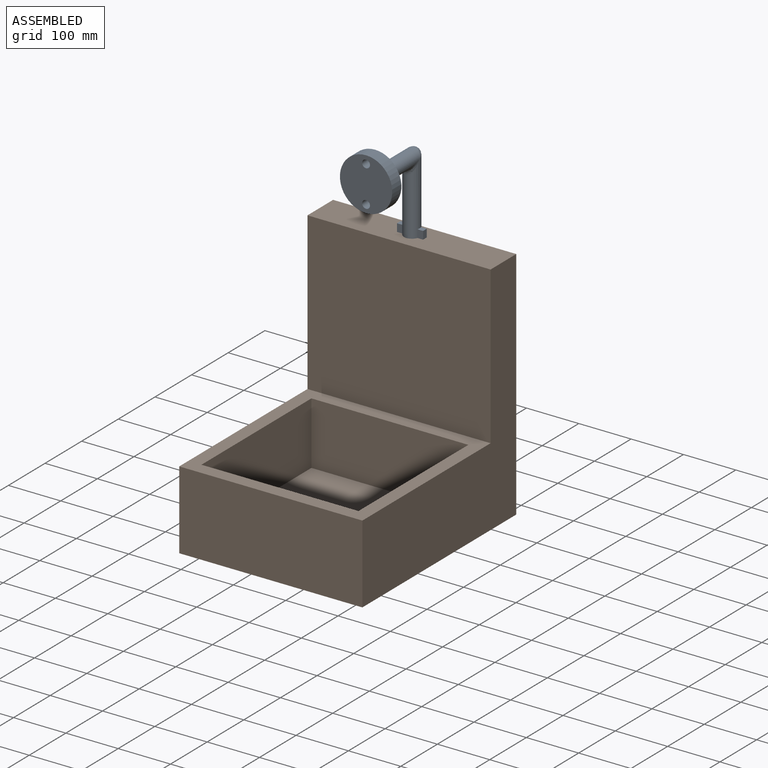
[diagram: assembled view]
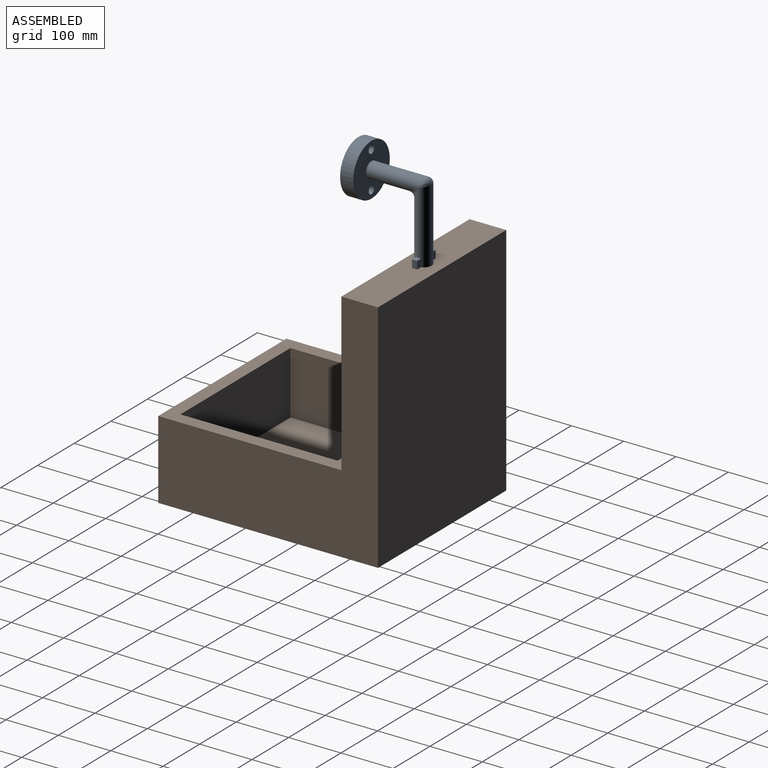
[diagram: assembled view, second angle]
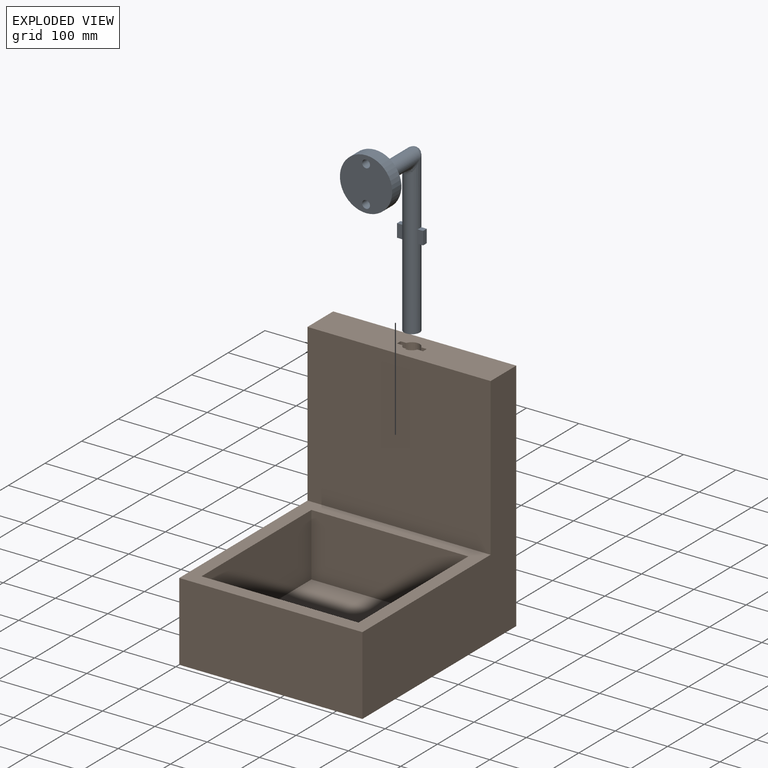
[diagram: exploded view]
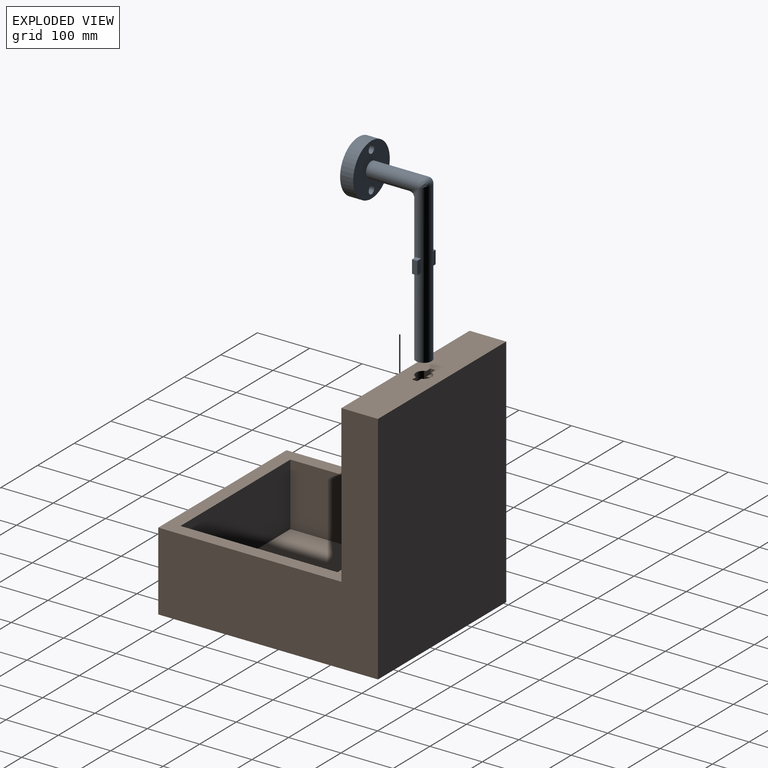
[diagram: exploded view, second angle]
ASSEMBLY  parts=2 mates=3
PART A: 20 faces, bbox 140x350x100 mm
  f0: plane 30x30mm, normal (0,1,0), area 706.9mm2, adj f2
  f1: cylinder r=15mm len=105.02mm, axis (1,0,0), area 8824.8mm2, adj f3,f4,f7
  f2: cylinder r=15mm len=305.02mm, axis (0,-1,0), area 27164.6mm2, adj f0,f3,f4,f9,f10,f11,f12,f13
  f3: bspline ~30x25mm, area 550.6mm2, adj f1,f2
  f4: bspline ~30x15mm, area 487.1mm2, adj f1,f2
  f5: cylinder r=50mm len=100mm, axis (-1,0,0), area 7854mm2, adj f6,f7
  f6: plane 100x100mm, normal (1,0,0), area 7500.6mm2, adj f5,f18,f19
  f7: plane 100x100mm, normal (-1,0,0), area 6793.7mm2, adj f1,f5,f18,f19
  f8: plane 25x10mm, normal (0,0,-1), area 250mm2, adj f9,f10,f11,f12
  f9: plane 10.86x10mm, normal (0,1,0), area 102.8mm2, adj f2,f8,f11,f12
  f10: plane 10.86x10mm, normal (0,-1,0), area 102.8mm2, adj f2,f8,f11,f12
  f11: plane 25x10.86mm, normal (1,0,0), area 271.4mm2, adj f2,f8,f9,f10
  f12: plane 25x10.86mm, normal (-1,0,0), area 271.4mm2, adj f2,f8,f9,f10
  f13: plane 10.86x10mm, normal (0,-1,0), area 102.8mm2, adj f2,f15,f16,f17
  f14: plane 10.86x10mm, normal (0,1,0), area 102.8mm2, adj f2,f15,f16,f17
  f15: plane 25x10.86mm, normal (-1,0,0), area 271.4mm2, adj f2,f13,f14,f17
  f16: plane 25x10.86mm, normal (1,0,0), area 271.4mm2, adj f2,f13,f14,f17
  f17: plane 25x10mm, normal (0,0,1), area 250mm2, adj f13,f14,f15,f16
  f18: cylinder r=7.5mm len=25mm, axis (1,0,0), area 1178.1mm2, adj f6,f7
  f19: cylinder r=7.5mm len=25mm, axis (1,0,0), area 1178.1mm2, adj f6,f7
PART B: 23 faces, bbox 350x420x450 mm
  f0: plane 350x70mm, normal (0,0,1), area 23587.5mm2, adj f1,f2,f5,f7,f8,f9,f16,f17
  f1: plane 10.86x10mm, normal (0,1,0), area 108.6mm2, adj f0,f3,f19,f21
  f2: plane 10.86x10mm, normal (0,-1,0), area 108.6mm2, adj f0,f3,f19,f21
  f3: plane 10.86x10mm, normal (0,0,1), area 102.8mm2, adj f1,f2,f19,f21
  f4: plane 350x350mm, normal (0,0,1), area 32500mm2, adj f5,f7,f8,f10,f11,f12,f13,f14
  f5: plane 350x300mm, normal (0,-1,0), area 105000mm2, adj f0,f4,f7,f8
  f6: plane 420x350mm, normal (0,0,-1), area 147000mm2, adj f7,f8,f9,f10
  f7: plane 450x420mm, normal (1,0,0), area 84000mm2, adj f0,f4,f5,f6,f9,f10
  f8: plane 450x420mm, normal (-1,0,0), area 84000mm2, adj f0,f4,f5,f6,f9,f10
  f9: plane 450x350mm, normal (0,1,0), area 157500mm2, adj f0,f6,f7,f8
  f10: plane 350x150mm, normal (0,-1,0), area 52500mm2, adj f4,f6,f7,f8
  f11: plane 300x120mm, normal (0,1,0), area 36000mm2, adj f4,f12,f14,f15
  f12: plane 300x120mm, normal (-1,0,0), area 36000mm2, adj f4,f11,f13,f15
  f13: plane 300x120mm, normal (0,-1,0), area 36000mm2, adj f4,f12,f14,f15
  f14: plane 300x120mm, normal (1,0,0), area 36000mm2, adj f4,f11,f13,f15
  f15: plane 300x300mm, normal (0,0,1), area 90000mm2, adj f11,f12,f13,f14
  f16: plane 10.86x10mm, normal (0,1,0), area 108.6mm2, adj f0,f17,f20,f21
  f17: plane 10x10mm, normal (-1,0,0), area 100mm2, adj f0,f16,f18,f20
  f18: plane 10.86x10mm, normal (0,-1,0), area 108.6mm2, adj f0,f17,f20,f21
  f19: plane 10x10mm, normal (1,0,0), area 100mm2, adj f0,f1,f2,f3
  f20: plane 10.86x10mm, normal (0,0,1), area 102.8mm2, adj f16,f17,f18,f21
  f21: cylinder r=15mm len=200mm, axis (0,0,1), area 18645.7mm2, adj f0,f1,f2,f3,f16,f18,f20,f22
  f22: plane 30x30mm, normal (0,0,1), area 706.9mm2, adj f21
PLACE A rot(axis=(-0.58,0.58,-0.58),120deg) t=(-409.17,-28.07,323.56)mm
PLACE B t=(-409.17,6.93,8.56)mm
MATE slider A.f2 <-> B.f21  axis (0,0,1) through (-409.17,-28.07,68.51)mm
MATE parallel A.f9 <-> B.f3  axis (0,0,-1) through (-429.03,-28.07,223.56)mm
MATE parallel A.f8 <-> B.f19  axis (-1,0,0) through (-434.17,-33.07,248.56)mm
